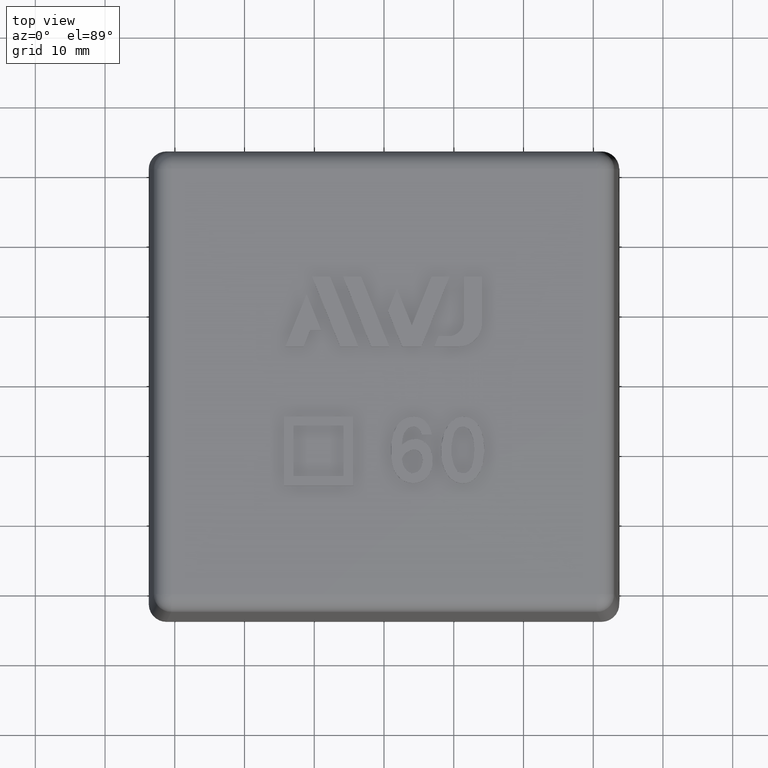
[diagram: clean part render]
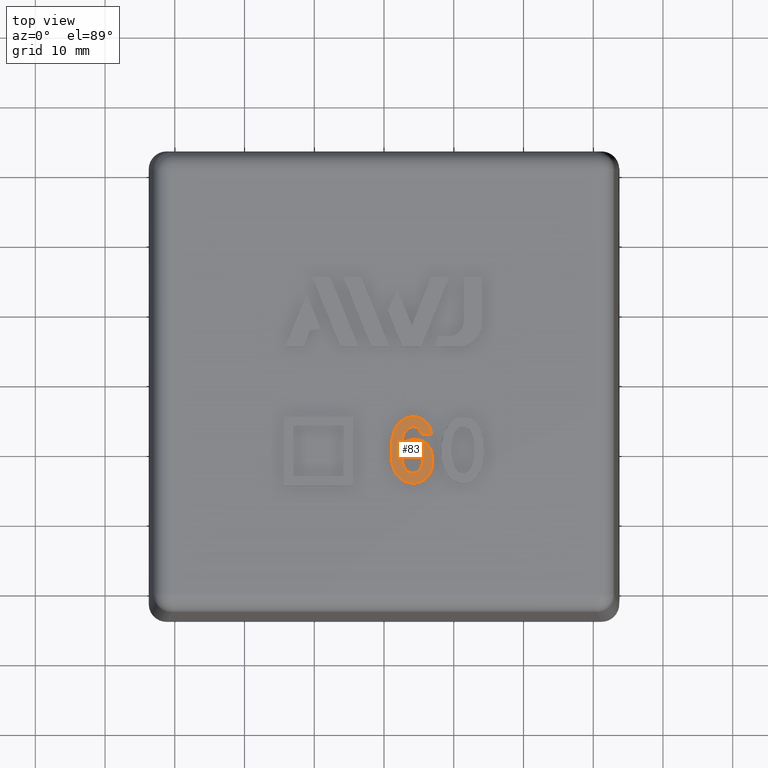
[diagram: same view with one face highlighted and labeled with its STEP entity id]
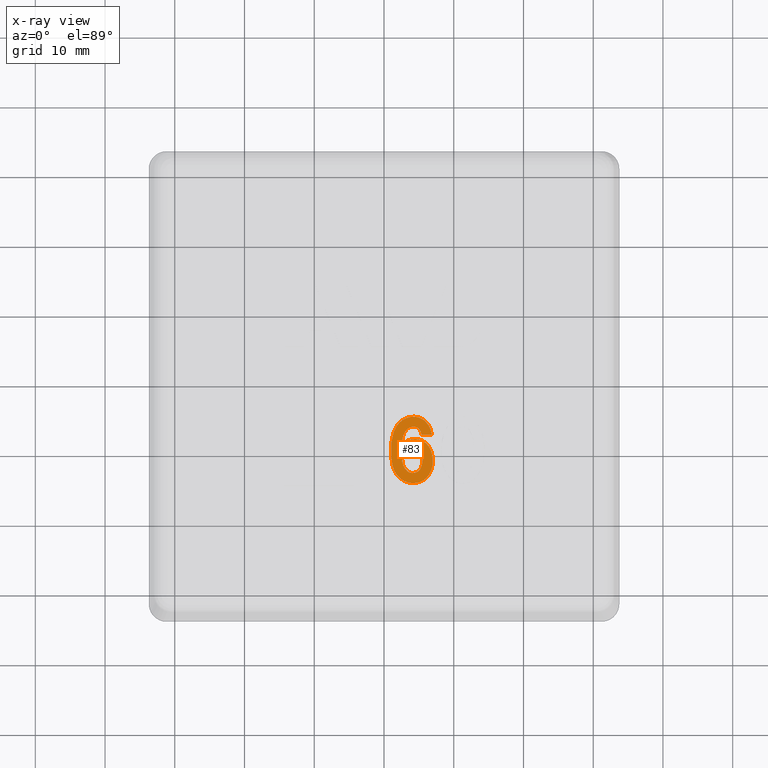
[diagram: x-ray of the same camera — body ghosted, the highlighted face saturated]
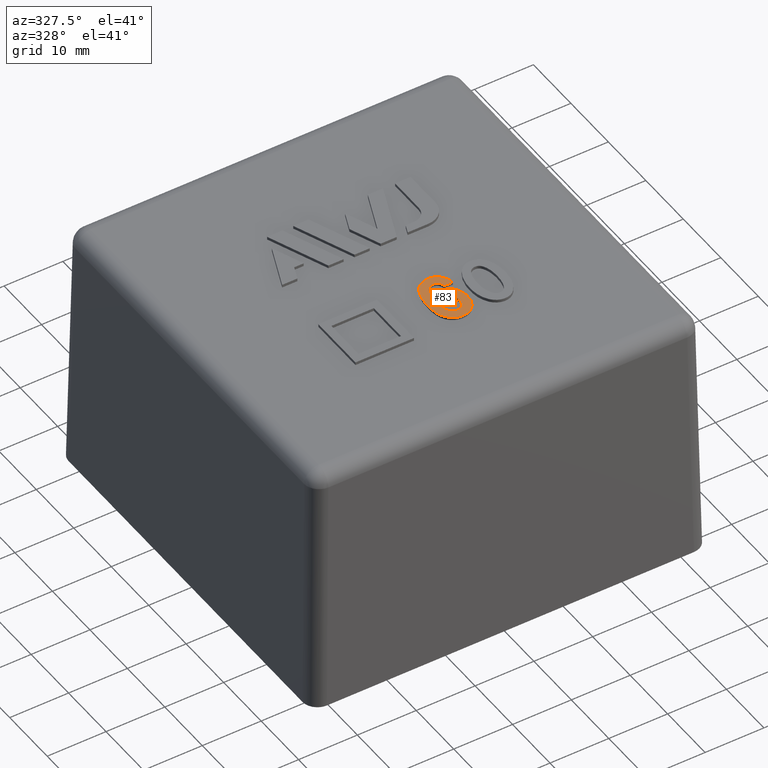
[diagram: same view with one face highlighted and labeled with its STEP entity id]
A machine part, top view. The second image highlights one B-rep face of the part: STEP entity #83.
The next image is the same camera in x-ray: the body ghosted, the highlighted face saturated — about 0% of this face is hidden behind the body in this view.
A second angle (auxiliary view) of the same face is appended — the face is thin or edge-on in the first view.
In plain terms, the highlighted planar face has unit normal (0, 0, 1).
Its self-contained STEP definition (entity closure, byte-faithful):
#83 = ADVANCED_FACE( '', ( #180, #181 ), #182, .T. );
#180 = FACE_OUTER_BOUND( '', #352, .T. );
#181 = FACE_BOUND( '', #353, .T. );
#182 = PLANE( '', #354 );
#352 = EDGE_LOOP( '', ( #622, #623, #624, #625 ) );
#353 = EDGE_LOOP( '', ( #626, #627 ) );
#354 = AXIS2_PLACEMENT_3D( '', #628, #629, #630 );
#622 = ORIENTED_EDGE( '', *, *, #1219, .F. );
#623 = ORIENTED_EDGE( '', *, *, #1220, .F. );
#624 = ORIENTED_EDGE( '', *, *, #1221, .F. );
#625 = ORIENTED_EDGE( '', *, *, #1222, .F. );
#626 = ORIENTED_EDGE( '', *, *, #1223, .F. );
#627 = ORIENTED_EDGE( '', *, *, #1224, .F. );
#628 = CARTESIAN_POINT( '', ( 6.51461643157442, -6.53314111625641, 43.5525000000000 ) );
#629 = DIRECTION( '', ( 0.000000000000000, 0.000000000000000, 1.00000000000000 ) );
#630 = DIRECTION( '', ( 0.000000000000000, -1.00000000000000, 0.000000000000000 ) );
#1219 = EDGE_CURVE( '', #1455, #1456, #1457, .T. );
#1220 = EDGE_CURVE( '', #1458, #1455, #1459, .T. );
#1221 = EDGE_CURVE( '', #1460, #1458, #1461, .T. );
#1222 = EDGE_CURVE( '', #1456, #1460, #1462, .T. );
#1223 = EDGE_CURVE( '', #1463, #1464, #1465, .T. );
#1224 = EDGE_CURVE( '', #1464, #1463, #1466, .T. );
#1455 = VERTEX_POINT( '', #1908 );
#1456 = VERTEX_POINT( '', #1909 );
#1457 = B_SPLINE_CURVE_WITH_KNOTS( '', 2, ( #1910, #1911, #1912 ), .UNSPECIFIED., .F., .F., ( 3, 3 ), ( 0.000000000000000, 1.00000000000000 ), .UNSPECIFIED. );
#1458 = VERTEX_POINT( '', #1913 );
#1459 = B_SPLINE_CURVE_WITH_KNOTS( '', 2, ( #1914, #1915, #1916, #1917, #1918, #1919, #1920, #1921, #1922, #1923, #1924, #1925, #1926, #1927, #1928, #1929, #1930, #1931, #1932, #1933, #1934, #1935, #1936 ), .UNSPECIFIED., .F., .F., ( 3, 2, 2, 2, 2, 2, 2, 2, 2, 2, 2, 3 ), ( 5.00000000000000, 6.00000000000000, 7.00000000000000, 8.00000000000000, 9.00000000000000, 10.0000000000000, 11.0000000000000, 12.0000000000000, 13.0000000000000, 14.0000000000000, 15.0000000000000, 16.0000000000000 ), .UNSPECIFIED. );
#1460 = VERTEX_POINT( '', #1937 );
#1461 = B_SPLINE_CURVE_WITH_KNOTS( '', 2, ( #1938, #1939, #1940, #1941, #1942, #1943, #1944 ), .UNSPECIFIED., .F., .F., ( 3, 2, 2, 3 ), ( 2.00000000000000, 3.00000000000000, 4.00000000000000, 5.00000000000000 ), .UNSPECIFIED. );
#1462 = B_SPLINE_CURVE_WITH_KNOTS( '', 2, ( #1945, #1946, #1947 ), .UNSPECIFIED., .F., .F., ( 3, 3 ), ( 1.00000000000000, 2.00000000000000 ), .UNSPECIFIED. );
#1463 = VERTEX_POINT( '', #1948 );
#1464 = VERTEX_POINT( '', #1949 );
#1465 = B_SPLINE_CURVE_WITH_KNOTS( '', 2, ( #1950, #1951, #1952, #1953, #1954, #1955, #1956, #1957, #1958, #1959, #1960 ), .UNSPECIFIED., .F., .F., ( 3, 2, 2, 2, 2, 3 ), ( 0.000000000000000, 1.00000000000000, 2.00000000000000, 3.00000000000000, 4.00000000000000, 5.00000000000000 ), .UNSPECIFIED. );
#1466 = B_SPLINE_CURVE_WITH_KNOTS( '', 2, ( #1961, #1962, #1963 ), .UNSPECIFIED., .F., .F., ( 3, 3 ), ( 5.00000000000000, 6.00000000000000 ), .UNSPECIFIED. );
#1908 = CARTESIAN_POINT( '', ( 5.86082652175234, -5.67501901048015, 43.5525000000000 ) );
#1909 = CARTESIAN_POINT( '', ( 6.85375852272724, -7.63736363636365, 43.5525000000000 ) );
#1910 = CARTESIAN_POINT( '', ( 5.86082652175234, -5.67501901048015, 43.5525000000000 ) );
#1911 = CARTESIAN_POINT( '', ( 6.67194034090906, -6.41009090909092, 43.5525000000000 ) );
#1912 = CARTESIAN_POINT( '', ( 6.85375852272724, -7.63736363636365, 43.5525000000000 ) );
#1913 = CARTESIAN_POINT( '', ( 2.58103124999996, -9.09190909090911, 43.5525000000000 ) );
#1914 = CARTESIAN_POINT( '', ( 2.58103124999996, -9.09190909090911, 43.5525000000000 ) );
#1915 = CARTESIAN_POINT( '', ( 4.21739488636360, -7.68281818181820, 43.5525000000000 ) );
#1916 = CARTESIAN_POINT( '', ( 5.79046721549432, -8.71013072329132, 43.5525000000000 ) );
#1917 = CARTESIAN_POINT( '', ( 6.44466761363633, -9.13736363636365, 43.5525000000000 ) );
#1918 = CARTESIAN_POINT( '', ( 6.76522705419577, -10.0456153846154, 43.5525000000000 ) );
#1919 = CARTESIAN_POINT( '', ( 6.99012215909088, -10.6828181818182, 43.5525000000000 ) );
#1920 = CARTESIAN_POINT( '', ( 6.99012215909088, -11.5464545454546, 43.5525000000000 ) );
#1921 = CARTESIAN_POINT( '', ( 6.99012215909088, -12.5919090909091, 43.5525000000000 ) );
#1922 = CARTESIAN_POINT( '', ( 6.39832972054663, -13.4549397304528, 43.5525000000000 ) );
#1923 = CARTESIAN_POINT( '', ( 5.89921306818179, -14.1828181818182, 43.5525000000000 ) );
#1924 = CARTESIAN_POINT( '', ( 5.07902703601158, -14.4493786422735, 43.5525000000000 ) );
#1925 = CARTESIAN_POINT( '', ( 4.08103124999997, -14.7737272727273, 43.5525000000000 ) );
#1926 = CARTESIAN_POINT( '', ( 3.13275538793100, -14.3944169278997, 43.5525000000000 ) );
#1927 = CARTESIAN_POINT( '', ( 2.03557670454542, -13.9555454545455, 43.5525000000000 ) );
#1928 = CARTESIAN_POINT( '', ( 1.49089230317200, -12.8188127908096, 43.5525000000000 ) );
#1929 = CARTESIAN_POINT( '', ( 0.990122159090874, -11.7737272727273, 43.5525000000000 ) );
#1930 = CARTESIAN_POINT( '', ( 1.01285250431683, -9.81891758329545, 43.5525000000000 ) );
#1931 = CARTESIAN_POINT( '', ( 1.03557670454542, -7.86463636363638, 43.5525000000000 ) );
#1932 = CARTESIAN_POINT( '', ( 1.60206774774879, -6.78476281252995, 43.5525000000000 ) );
#1933 = CARTESIAN_POINT( '', ( 2.49012215909088, -5.09190909090911, 43.5525000000000 ) );
#1934 = CARTESIAN_POINT( '', ( 4.26284943181815, -5.09190909090911, 43.5525000000000 ) );
#1935 = CARTESIAN_POINT( '', ( 5.21739488636360, -5.09190909090911, 43.5525000000000 ) );
#1936 = CARTESIAN_POINT( '', ( 5.86082652175234, -5.67501901048015, 43.5525000000000 ) );
#1937 = CARTESIAN_POINT( '', ( 5.39921306818179, -7.63736363636365, 43.5525000000000 ) );
#1938 = CARTESIAN_POINT( '', ( 5.39921306818179, -7.63736363636365, 43.5525000000000 ) );
#1939 = CARTESIAN_POINT( '', ( 5.17194034090906, -6.50100000000001, 43.5525000000000 ) );
#1940 = CARTESIAN_POINT( '', ( 4.21739488636360, -6.50100000000001, 43.5525000000000 ) );
#1941 = CARTESIAN_POINT( '', ( 3.49012215909088, -6.50100000000001, 43.5525000000000 ) );
#1942 = CARTESIAN_POINT( '', ( 2.99115749407184, -7.27439523077952, 43.5525000000000 ) );
#1943 = CARTESIAN_POINT( '', ( 2.58103124999996, -7.91009090909092, 43.5525000000000 ) );
#1944 = CARTESIAN_POINT( '', ( 2.58103124999996, -9.09190909090911, 43.5525000000000 ) );
#1945 = CARTESIAN_POINT( '', ( 6.85375852272724, -7.63736363636365, 43.5525000000000 ) );
#1946 = CARTESIAN_POINT( '', ( 6.12648579545451, -7.63736363636365, 43.5525000000000 ) );
#1947 = CARTESIAN_POINT( '', ( 5.39921306818179, -7.63736363636365, 43.5525000000000 ) );
#1948 = CARTESIAN_POINT( '', ( 2.99872166769038, -12.4948574938575, 43.5525000000000 ) );
#1949 = CARTESIAN_POINT( '', ( 2.58103124999996, -11.0464545454546, 43.5525000000000 ) );
#1950 = CARTESIAN_POINT( '', ( 2.99872166769038, -12.4948574938575, 43.5525000000000 ) );
#1951 = CARTESIAN_POINT( '', ( 3.49012215909088, -13.1828181818182, 43.5525000000000 ) );
#1952 = CARTESIAN_POINT( '', ( 4.12596673865487, -13.1646511938307, 43.5525000000000 ) );
#1953 = CARTESIAN_POINT( '', ( 5.08103124999997, -13.1373636363637, 43.5525000000000 ) );
#1954 = CARTESIAN_POINT( '', ( 5.39808074854412, -12.1228052410223, 43.5525000000000 ) );
#1955 = CARTESIAN_POINT( '', ( 5.76284943181815, -10.9555454545455, 43.5525000000000 ) );
#1956 = CARTESIAN_POINT( '', ( 5.19251812378192, -10.2483346325805, 43.5525000000000 ) );
#1957 = CARTESIAN_POINT( '', ( 4.62648579545451, -9.54645454545456, 43.5525000000000 ) );
#1958 = CARTESIAN_POINT( '', ( 3.72813614510486, -9.93493006993008, 43.5525000000000 ) );
#1959 = CARTESIAN_POINT( '', ( 2.94466761363633, -10.2737272727273, 43.5525000000000 ) );
#1960 = CARTESIAN_POINT( '', ( 2.58103124999996, -11.0464545454546, 43.5525000000000 ) );
#1961 = CARTESIAN_POINT( '', ( 2.58103124999996, -11.0464545454546, 43.5525000000000 ) );
#1962 = CARTESIAN_POINT( '', ( 2.58103124999996, -11.9100909090909, 43.5525000000000 ) );
#1963 = CARTESIAN_POINT( '', ( 2.99872166769038, -12.4948574938575, 43.5525000000000 ) );